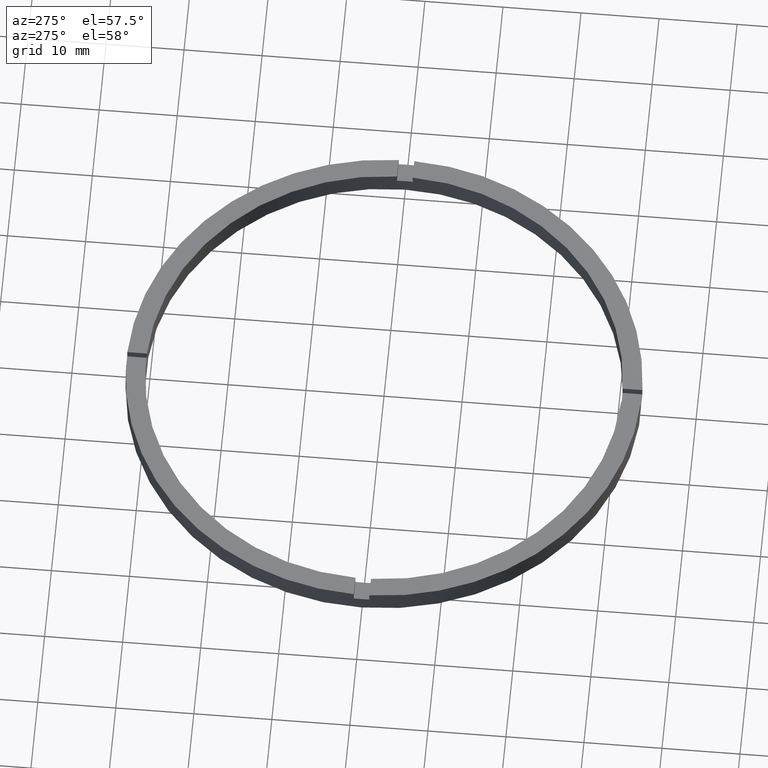
[diagram: clean part render]
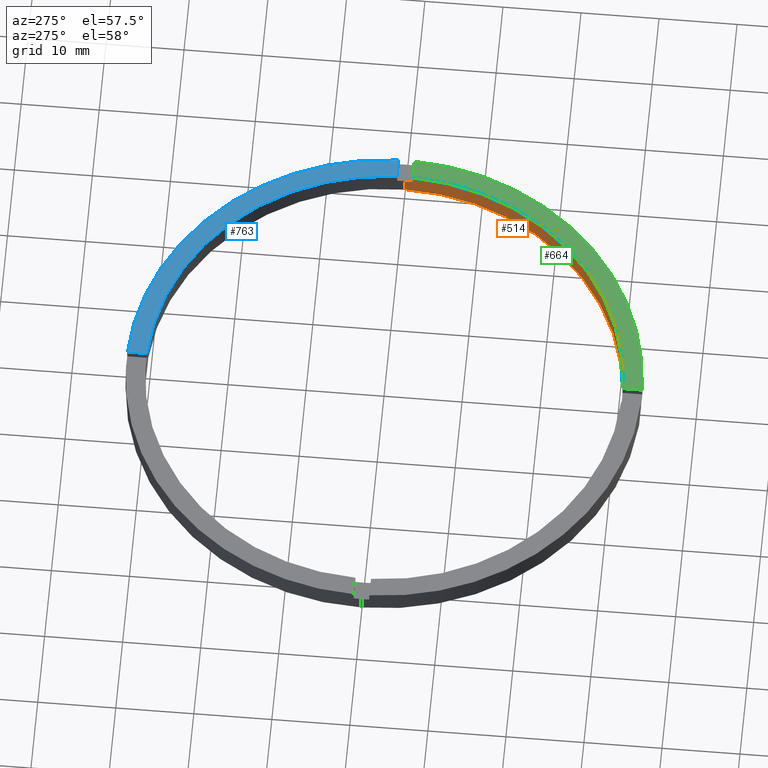
[diagram: same view with three faces highlighted in distinct colors, each labeled with its STEP entity id]
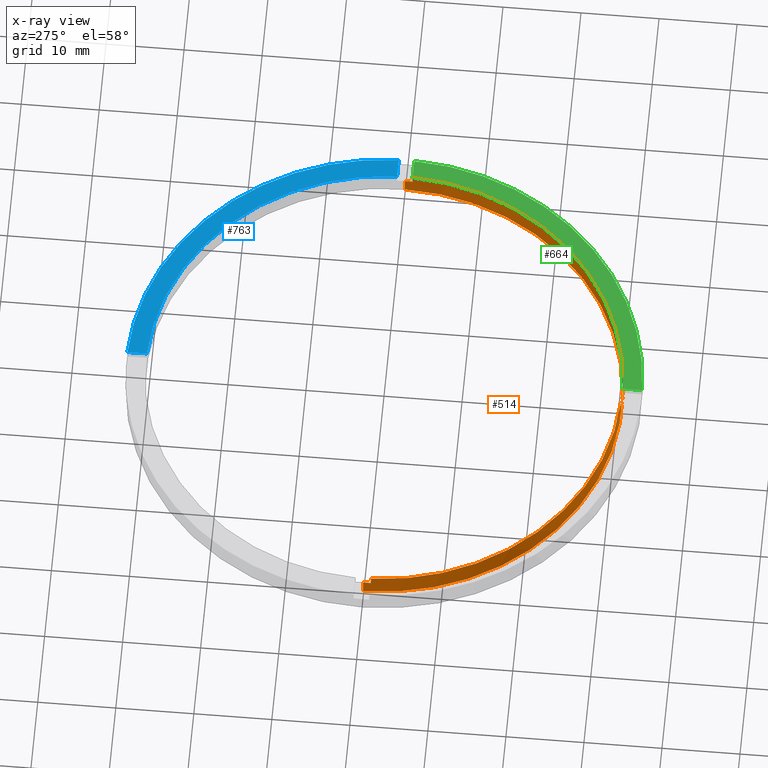
[diagram: x-ray of the same camera — body ghosted, the three highlighted faces saturated]
A machine part, auxiliary view with three faces highlighted in distinct colors.
The next image is the same camera in x-ray (body ghosted, the three faces saturated) — at least one of them is partly hidden behind the body in this view.
Their STEP definitions:

[orange] entity #514 — the highlighted cylindrical surface (partial cylindrical patch) has radius 30.5 mm, axis along (-0, -0, -1).
#9 = DIRECTION ( 'NONE',  ( -0.000000000000000000, -0.000000000000000000, -1.000000000000000000 ) ) ;
#22 = ORIENTED_EDGE ( 'NONE', *, *, #161, .T. ) ;
#24 = ORIENTED_EDGE ( 'NONE', *, *, #498, .T. ) ;
#38 = ORIENTED_EDGE ( 'NONE', *, *, #441, .F. ) ;
#44 = CARTESIAN_POINT ( 'NONE',  ( 30.48360214935235390, -1.000000000000158540, 2.000000000000000000 ) ) ;
#46 = CYLINDRICAL_SURFACE ( 'NONE', #509, 30.50000000000000000 ) ;
#54 = LINE ( 'NONE', #158, #301 ) ;
#58 = VECTOR ( 'NONE', #488, 1000.000000000000000 ) ;
#72 = CIRCLE ( 'NONE', #577, 30.50000000000000000 ) ;
#74 = VECTOR ( 'NONE', #155, 1000.000000000000000 ) ;
#76 = ORIENTED_EDGE ( 'NONE', *, *, #400, .T. ) ;
#77 = VERTEX_POINT ( 'NONE', #666 ) ;
#78 = ORIENTED_EDGE ( 'NONE', *, *, #227, .F. ) ;
#84 = VERTEX_POINT ( 'NONE', #726 ) ;
#87 = VERTEX_POINT ( 'NONE', #721 ) ;
#88 = VERTEX_POINT ( 'NONE', #471 ) ;
#91 = DIRECTION ( 'NONE',  ( -1.000000000000000000, 0.000000000000000000, 0.000000000000000000 ) ) ;
#93 = EDGE_CURVE ( 'NONE', #633, #372, #137, .T. ) ;
#97 = CARTESIAN_POINT ( 'NONE',  ( -30.48360214935236101, -1.000000000000025535, 3.000000000000000000 ) ) ;
#102 = ORIENTED_EDGE ( 'NONE', *, *, #489, .F. ) ;
#111 = CARTESIAN_POINT ( 'NONE',  ( 0.000000000000000000, 0.000000000000000000, 2.000000000000000000 ) ) ;
#113 = CARTESIAN_POINT ( 'NONE',  ( 30.50000000000000000, 3.735172737399427541E-15, 0.000000000000000000 ) ) ;
#117 = DIRECTION ( 'NONE',  ( -0.000000000000000000, -0.000000000000000000, -1.000000000000000000 ) ) ;
#119 = CARTESIAN_POINT ( 'NONE',  ( 0.000000000000000000, 0.000000000000000000, 2.000000000000000000 ) ) ;
#127 = VERTEX_POINT ( 'NONE', #779 ) ;
#135 = DIRECTION ( 'NONE',  ( 1.000000000000000000, 0.000000000000000000, 0.000000000000000000 ) ) ;
#137 = LINE ( 'NONE', #97, #144 ) ;
#144 = VECTOR ( 'NONE', #117, 1000.000000000000000 ) ;
#155 = DIRECTION ( 'NONE',  ( -0.000000000000000000, -0.000000000000000000, -1.000000000000000000 ) ) ;
#158 = CARTESIAN_POINT ( 'NONE',  ( 0.9999999999998386846, -30.48360214935236456, 3.000000000000000000 ) ) ;
#161 = EDGE_CURVE ( 'NONE', #632, #77, #397, .T. ) ;
#173 = DIRECTION ( 'NONE',  ( 0.000000000000000000, 0.000000000000000000, 1.000000000000000000 ) ) ;
#186 = AXIS2_PLACEMENT_3D ( 'NONE', #224, #173, #412 ) ;
#192 = DIRECTION ( 'NONE',  ( 0.000000000000000000, 0.000000000000000000, 1.000000000000000000 ) ) ;
#207 = VERTEX_POINT ( 'NONE', #424 ) ;
#224 = CARTESIAN_POINT ( 'NONE',  ( 0.000000000000000000, 0.000000000000000000, 3.000000000000000000 ) ) ;
#227 = EDGE_CURVE ( 'NONE', #84, #87, #319, .T. ) ;
#242 = CARTESIAN_POINT ( 'NONE',  ( -30.48360214935236101, -1.000000000000025535, 3.000000000000000000 ) ) ;
#249 = CARTESIAN_POINT ( 'NONE',  ( 30.50000000000000000, 3.735172737399427541E-15, 3.000000000000000000 ) ) ;
#261 = DIRECTION ( 'NONE',  ( 1.000000000000000000, 0.000000000000000000, 0.000000000000000000 ) ) ;
#265 = DIRECTION ( 'NONE',  ( 1.000000000000000000, 0.000000000000000000, 0.000000000000000000 ) ) ;
#287 = ORIENTED_EDGE ( 'NONE', *, *, #507, .F. ) ;
#288 = ORIENTED_EDGE ( 'NONE', *, *, #93, .F. ) ;
#291 = ORIENTED_EDGE ( 'NONE', *, *, #750, .F. ) ;
#295 = CIRCLE ( 'NONE', #186, 30.50000000000000000 ) ;
#301 = VECTOR ( 'NONE', #464, 1000.000000000000000 ) ;
#303 = CARTESIAN_POINT ( 'NONE',  ( 0.000000000000000000, 0.000000000000000000, 2.000000000000000000 ) ) ;
#311 = LINE ( 'NONE', #389, #74 ) ;
#313 = DIRECTION ( 'NONE',  ( -0.000000000000000000, -0.000000000000000000, -1.000000000000000000 ) ) ;
#315 = LINE ( 'NONE', #249, #594 ) ;
#319 = LINE ( 'NONE', #568, #58 ) ;
#332 = AXIS2_PLACEMENT_3D ( 'NONE', #303, #406, #609 ) ;
#336 = ORIENTED_EDGE ( 'NONE', *, *, #655, .T. ) ;
#362 = VERTEX_POINT ( 'NONE', #638 ) ;
#372 = VERTEX_POINT ( 'NONE', #627 ) ;
#383 = DIRECTION ( 'NONE',  ( 0.000000000000000000, 0.000000000000000000, 1.000000000000000000 ) ) ;
#389 = CARTESIAN_POINT ( 'NONE',  ( -30.50000000000000000, 0.000000000000000000, 3.000000000000000000 ) ) ;
#397 = CIRCLE ( 'NONE', #415, 30.50000000000000000 ) ;
#400 = EDGE_CURVE ( 'NONE', #84, #88, #585, .T. ) ;
#406 = DIRECTION ( 'NONE',  ( -0.000000000000000000, 0.000000000000000000, 1.000000000000000000 ) ) ;
#412 = DIRECTION ( 'NONE',  ( 1.000000000000000000, 0.000000000000000000, 0.000000000000000000 ) ) ;
#414 = LINE ( 'NONE', #490, #431 ) ;
#415 = AXIS2_PLACEMENT_3D ( 'NONE', #119, #515, #765 ) ;
#424 = CARTESIAN_POINT ( 'NONE',  ( -30.50000000000000000, 0.000000000000000000, 0.000000000000000000 ) ) ;
#431 = VECTOR ( 'NONE', #450, 1000.000000000000000 ) ;
#441 = EDGE_CURVE ( 'NONE', #607, #88, #54, .T. ) ;
#450 = DIRECTION ( 'NONE',  ( 0.000000000000000000, 0.000000000000000000, 1.000000000000000000 ) ) ;
#464 = DIRECTION ( 'NONE',  ( -0.000000000000000000, -0.000000000000000000, -1.000000000000000000 ) ) ;
#465 = EDGE_LOOP ( 'NONE', ( #22, #611, #287, #102, #630, #288, #336, #78, #76, #38, #24, #291 ) ) ;
#471 = CARTESIAN_POINT ( 'NONE',  ( 0.9999999999998386846, -30.48360214935236456, 2.000000000000000000 ) ) ;
#488 = DIRECTION ( 'NONE',  ( 0.000000000000000000, 0.000000000000000000, 1.000000000000000000 ) ) ;
#489 = EDGE_CURVE ( 'NONE', #362, #207, #311, .T. ) ;
#490 = CARTESIAN_POINT ( 'NONE',  ( 30.48360214935235390, -1.000000000000158540, 3.000000000000000000 ) ) ;
#493 = EDGE_CURVE ( 'NONE', #77, #554, #315, .T. ) ;
#498 = EDGE_CURVE ( 'NONE', #607, #127, #295, .T. ) ;
#507 = EDGE_CURVE ( 'NONE', #207, #554, #72, .T. ) ;
#509 = AXIS2_PLACEMENT_3D ( 'NONE', #762, #9, #91 ) ;
#512 = CARTESIAN_POINT ( 'NONE',  ( 0.000000000000000000, 0.000000000000000000, 0.000000000000000000 ) ) ;
#514 = ADVANCED_FACE ( 'NONE', ( #597 ), #46, .F. ) ;
#515 = DIRECTION ( 'NONE',  ( 0.000000000000000000, 0.000000000000000000, 1.000000000000000000 ) ) ;
#554 = VERTEX_POINT ( 'NONE', #113 ) ;
#568 = CARTESIAN_POINT ( 'NONE',  ( -1.000000000000161426, -30.48360214935235390, 3.000000000000000000 ) ) ;
#577 = AXIS2_PLACEMENT_3D ( 'NONE', #512, #192, #135 ) ;
#585 = CIRCLE ( 'NONE', #332, 30.50000000000000000 ) ;
#589 = DIRECTION ( 'NONE',  ( 0.000000000000000000, 0.000000000000000000, 1.000000000000000000 ) ) ;
#594 = VECTOR ( 'NONE', #313, 1000.000000000000000 ) ;
#597 = FACE_OUTER_BOUND ( 'NONE', #465, .T. ) ;
#607 = VERTEX_POINT ( 'NONE', #767 ) ;
#609 = DIRECTION ( 'NONE',  ( 1.000000000000000000, 0.000000000000000000, 0.000000000000000000 ) ) ;
#611 = ORIENTED_EDGE ( 'NONE', *, *, #493, .T. ) ;
#627 = CARTESIAN_POINT ( 'NONE',  ( -30.48360214935236101, -1.000000000000025535, 2.000000000000000000 ) ) ;
#630 = ORIENTED_EDGE ( 'NONE', *, *, #742, .T. ) ;
#632 = VERTEX_POINT ( 'NONE', #44 ) ;
#633 = VERTEX_POINT ( 'NONE', #242 ) ;
#638 = CARTESIAN_POINT ( 'NONE',  ( -30.50000000000000000, 0.000000000000000000, 2.000000000000000000 ) ) ;
#655 = EDGE_CURVE ( 'NONE', #633, #87, #689, .T. ) ;
#666 = CARTESIAN_POINT ( 'NONE',  ( 30.50000000000000000, 3.735172737399427541E-15, 2.000000000000000000 ) ) ;
#678 = CIRCLE ( 'NONE', #709, 30.50000000000000000 ) ;
#681 = CARTESIAN_POINT ( 'NONE',  ( 0.000000000000000000, 0.000000000000000000, 3.000000000000000000 ) ) ;
#689 = CIRCLE ( 'NONE', #751, 30.50000000000000000 ) ;
#709 = AXIS2_PLACEMENT_3D ( 'NONE', #111, #383, #265 ) ;
#721 = CARTESIAN_POINT ( 'NONE',  ( -1.000000000000161426, -30.48360214935235390, 3.000000000000000000 ) ) ;
#726 = CARTESIAN_POINT ( 'NONE',  ( -1.000000000000161426, -30.48360214935235390, 2.000000000000000000 ) ) ;
#742 = EDGE_CURVE ( 'NONE', #362, #372, #678, .T. ) ;
#750 = EDGE_CURVE ( 'NONE', #632, #127, #414, .T. ) ;
#751 = AXIS2_PLACEMENT_3D ( 'NONE', #681, #589, #261 ) ;
#762 = CARTESIAN_POINT ( 'NONE',  ( 0.000000000000000000, 0.000000000000000000, 3.000000000000000000 ) ) ;
#765 = DIRECTION ( 'NONE',  ( 1.000000000000000000, 0.000000000000000000, 0.000000000000000000 ) ) ;
#767 = CARTESIAN_POINT ( 'NONE',  ( 0.9999999999998386846, -30.48360214935236456, 3.000000000000000000 ) ) ;
#779 = CARTESIAN_POINT ( 'NONE',  ( 30.48360214935235390, -1.000000000000158540, 3.000000000000000000 ) ) ;

[blue] entity #763 — the highlighted planar face has unit normal (0, 0, 1).
#30 = DIRECTION ( 'NONE',  ( 1.000000000000000000, 0.000000000000000000, 0.000000000000000000 ) ) ;
#59 = VECTOR ( 'NONE', #327, 1000.000000000000000 ) ;
#95 = EDGE_CURVE ( 'NONE', #294, #364, #128, .T. ) ;
#108 = ORIENTED_EDGE ( 'NONE', *, *, #244, .T. ) ;
#121 = DIRECTION ( 'NONE',  ( 1.000000000000000000, 0.000000000000000000, -0.000000000000000000 ) ) ;
#128 = CIRCLE ( 'NONE', #651, 30.50000000000000000 ) ;
#172 = VECTOR ( 'NONE', #529, 1000.000000000000000 ) ;
#191 = DIRECTION ( 'NONE',  ( 0.000000000000000000, 0.000000000000000000, 1.000000000000000000 ) ) ;
#223 = CARTESIAN_POINT ( 'NONE',  ( 0.9999999999999753530, 30.48360214935236101, 3.000000000000000000 ) ) ;
#225 = AXIS2_PLACEMENT_3D ( 'NONE', #246, #527, #604 ) ;
#226 = CARTESIAN_POINT ( 'NONE',  ( 0.9999999999999753530, 32.98484500494129179, 3.000000000000000000 ) ) ;
#244 = EDGE_CURVE ( 'NONE', #608, #624, #310, .T. ) ;
#246 = CARTESIAN_POINT ( 'NONE',  ( 0.000000000000000000, 0.000000000000000000, 3.000000000000000000 ) ) ;
#247 = CARTESIAN_POINT ( 'NONE',  ( 0.9999999999999753530, 23.00000000000000000, 3.000000000000000000 ) ) ;
#294 = VERTEX_POINT ( 'NONE', #756 ) ;
#310 = CIRCLE ( 'NONE', #225, 33.00000000000000000 ) ;
#314 = AXIS2_PLACEMENT_3D ( 'NONE', #520, #191, #121 ) ;
#321 = CARTESIAN_POINT ( 'NONE',  ( 32.98484500494129179, 0.9999999999998416822, 3.000000000000000000 ) ) ;
#327 = DIRECTION ( 'NONE',  ( -1.000000000000000000, -6.505213034913022906E-17, -0.000000000000000000 ) ) ;
#331 = EDGE_CURVE ( 'NONE', #608, #294, #567, .T. ) ;
#364 = VERTEX_POINT ( 'NONE', #223 ) ;
#385 = ORIENTED_EDGE ( 'NONE', *, *, #331, .F. ) ;
#418 = LINE ( 'NONE', #247, #172 ) ;
#430 = CARTESIAN_POINT ( 'NONE',  ( 0.000000000000000000, 0.000000000000000000, 3.000000000000000000 ) ) ;
#434 = FACE_OUTER_BOUND ( 'NONE', #686, .T. ) ;
#462 = CARTESIAN_POINT ( 'NONE',  ( 22.99999999999999645, 0.9999999999998411271, 3.000000000000000000 ) ) ;
#520 = CARTESIAN_POINT ( 'NONE',  ( 0.000000000000000000, 0.000000000000000000, 3.000000000000000000 ) ) ;
#527 = DIRECTION ( 'NONE',  ( 0.000000000000000000, 0.000000000000000000, 1.000000000000000000 ) ) ;
#529 = DIRECTION ( 'NONE',  ( 0.000000000000000000, 1.000000000000000000, 0.000000000000000000 ) ) ;
#567 = LINE ( 'NONE', #462, #59 ) ;
#604 = DIRECTION ( 'NONE',  ( 1.000000000000000000, 0.000000000000000000, 0.000000000000000000 ) ) ;
#608 = VERTEX_POINT ( 'NONE', #321 ) ;
#622 = ORIENTED_EDGE ( 'NONE', *, *, #717, .F. ) ;
#624 = VERTEX_POINT ( 'NONE', #226 ) ;
#651 = AXIS2_PLACEMENT_3D ( 'NONE', #430, #764, #30 ) ;
#686 = EDGE_LOOP ( 'NONE', ( #622, #772, #385, #108 ) ) ;
#692 = PLANE ( 'NONE',  #314 ) ;
#717 = EDGE_CURVE ( 'NONE', #364, #624, #418, .T. ) ;
#756 = CARTESIAN_POINT ( 'NONE',  ( 30.48360214935236456, 0.9999999999998414602, 3.000000000000000000 ) ) ;
#763 = ADVANCED_FACE ( 'NONE', ( #434 ), #692, .T. ) ;
#764 = DIRECTION ( 'NONE',  ( 0.000000000000000000, 0.000000000000000000, 1.000000000000000000 ) ) ;
#772 = ORIENTED_EDGE ( 'NONE', *, *, #95, .F. ) ;

[green] entity #664 — the highlighted planar face has unit normal (0, 0, 1).
#61 = LINE ( 'NONE', #495, #297 ) ;
#68 = EDGE_CURVE ( 'NONE', #105, #196, #388, .T. ) ;
#73 = LINE ( 'NONE', #722, #588 ) ;
#104 = EDGE_LOOP ( 'NONE', ( #107, #373, #619, #506 ) ) ;
#105 = VERTEX_POINT ( 'NONE', #648 ) ;
#107 = ORIENTED_EDGE ( 'NONE', *, *, #300, .F. ) ;
#127 = VERTEX_POINT ( 'NONE', #779 ) ;
#173 = DIRECTION ( 'NONE',  ( 0.000000000000000000, 0.000000000000000000, 1.000000000000000000 ) ) ;
#186 = AXIS2_PLACEMENT_3D ( 'NONE', #224, #173, #412 ) ;
#196 = VERTEX_POINT ( 'NONE', #773 ) ;
#216 = DIRECTION ( 'NONE',  ( -1.301042606982605074E-16, 1.000000000000000000, -0.000000000000000000 ) ) ;
#224 = CARTESIAN_POINT ( 'NONE',  ( 0.000000000000000000, 0.000000000000000000, 3.000000000000000000 ) ) ;
#263 = DIRECTION ( 'NONE',  ( 1.000000000000000000, 6.505213034913022906E-17, 0.000000000000000000 ) ) ;
#295 = CIRCLE ( 'NONE', #186, 30.50000000000000000 ) ;
#297 = VECTOR ( 'NONE', #216, 1000.000000000000000 ) ;
#300 = EDGE_CURVE ( 'NONE', #127, #196, #73, .T. ) ;
#325 = CARTESIAN_POINT ( 'NONE',  ( 0.000000000000000000, 0.000000000000000000, 3.000000000000000000 ) ) ;
#333 = PLANE ( 'NONE',  #419 ) ;
#373 = ORIENTED_EDGE ( 'NONE', *, *, #498, .F. ) ;
#388 = CIRCLE ( 'NONE', #702, 33.00000000000000000 ) ;
#412 = DIRECTION ( 'NONE',  ( 1.000000000000000000, 0.000000000000000000, 0.000000000000000000 ) ) ;
#419 = AXIS2_PLACEMENT_3D ( 'NONE', #501, #556, #718 ) ;
#422 = DIRECTION ( 'NONE',  ( 1.000000000000000000, 0.000000000000000000, 0.000000000000000000 ) ) ;
#425 = FACE_OUTER_BOUND ( 'NONE', #104, .T. ) ;
#472 = EDGE_CURVE ( 'NONE', #105, #607, #61, .T. ) ;
#495 = CARTESIAN_POINT ( 'NONE',  ( 0.9999999999998377964, -23.00000000000018119, 3.000000000000000000 ) ) ;
#498 = EDGE_CURVE ( 'NONE', #607, #127, #295, .T. ) ;
#501 = CARTESIAN_POINT ( 'NONE',  ( 0.000000000000000000, 0.000000000000000000, 3.000000000000000000 ) ) ;
#506 = ORIENTED_EDGE ( 'NONE', *, *, #68, .T. ) ;
#513 = DIRECTION ( 'NONE',  ( 0.000000000000000000, 0.000000000000000000, 1.000000000000000000 ) ) ;
#556 = DIRECTION ( 'NONE',  ( 0.000000000000000000, 0.000000000000000000, 1.000000000000000000 ) ) ;
#588 = VECTOR ( 'NONE', #263, 1000.000000000000000 ) ;
#607 = VERTEX_POINT ( 'NONE', #767 ) ;
#619 = ORIENTED_EDGE ( 'NONE', *, *, #472, .F. ) ;
#648 = CARTESIAN_POINT ( 'NONE',  ( 0.9999999999998391287, -32.98484500494129179, 3.000000000000000000 ) ) ;
#664 = ADVANCED_FACE ( 'NONE', ( #425 ), #333, .T. ) ;
#702 = AXIS2_PLACEMENT_3D ( 'NONE', #325, #513, #422 ) ;
#718 = DIRECTION ( 'NONE',  ( 1.000000000000000000, 0.000000000000000000, -0.000000000000000000 ) ) ;
#722 = CARTESIAN_POINT ( 'NONE',  ( 22.99999999999999645, -1.000000000000158984, 3.000000000000000000 ) ) ;
#767 = CARTESIAN_POINT ( 'NONE',  ( 0.9999999999998386846, -30.48360214935236456, 3.000000000000000000 ) ) ;
#773 = CARTESIAN_POINT ( 'NONE',  ( 32.98484500494128469, -1.000000000000158318, 3.000000000000000000 ) ) ;
#779 = CARTESIAN_POINT ( 'NONE',  ( 30.48360214935235390, -1.000000000000158540, 3.000000000000000000 ) ) ;